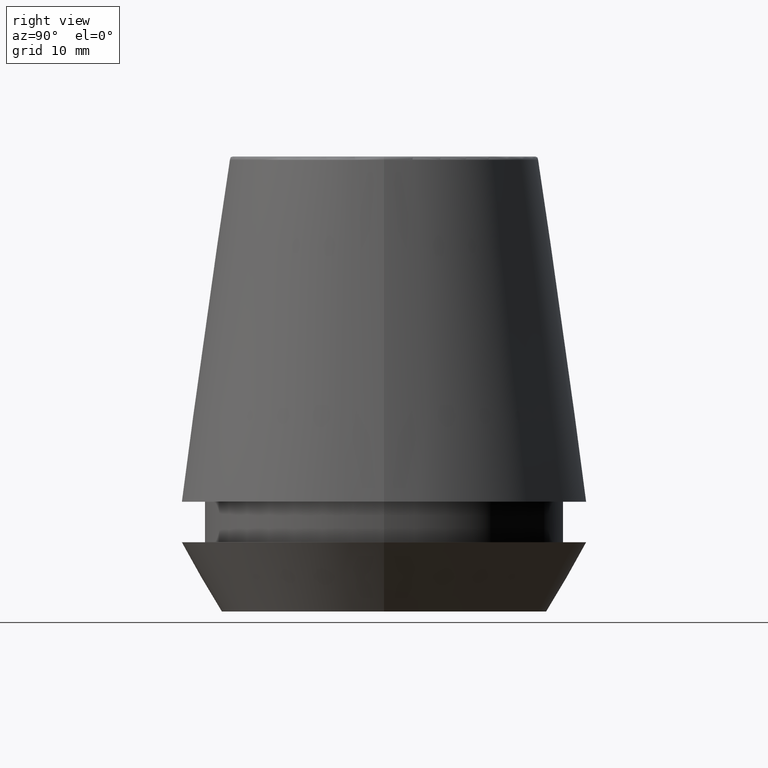
[diagram: clean part render]
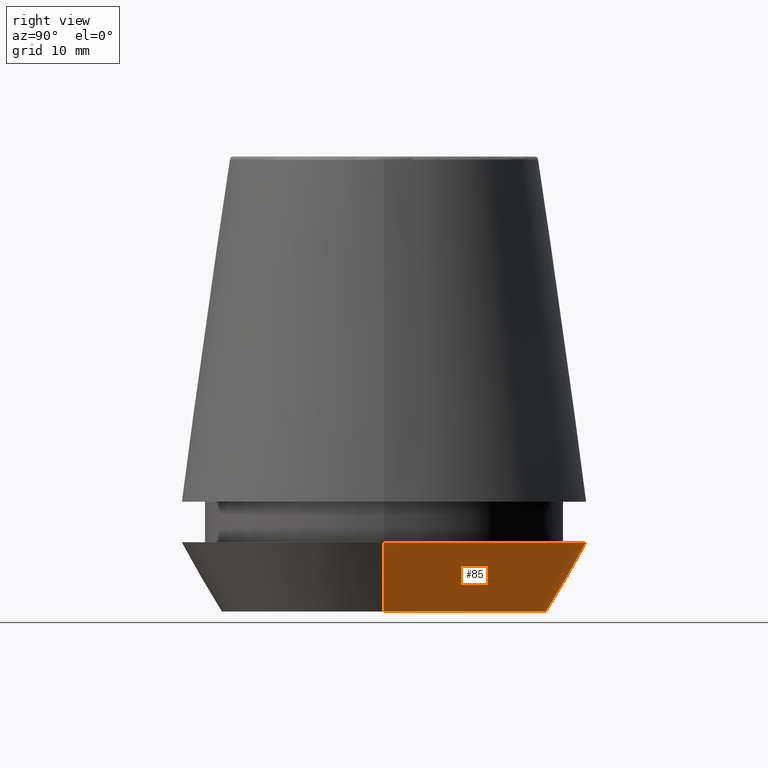
[diagram: same view with one face highlighted and labeled with its STEP entity id]
A machine part, right view. The second image highlights one B-rep face of the part: STEP entity #85.
In plain terms, the highlighted conical surface has half-angle 30 deg.
Its self-contained STEP definition (entity closure, byte-faithful):
#20 = CARTESIAN_POINT ( 'NONE',  ( 20.50000000000000000, 0.0000000000000000000, 7.000000000000006200 ) ) ;
#24 = EDGE_CURVE ( 'NONE', #293, #193, #84, .T. ) ;
#26 = VERTEX_POINT ( 'NONE', #110 ) ;
#35 = EDGE_CURVE ( 'NONE', #26, #193, #61, .T. ) ;
#40 = CARTESIAN_POINT ( 'NONE',  ( 16.45854811567268100, 0.0000000000000000000, 0.0000000000000000000 ) ) ;
#42 = DIRECTION ( 'NONE',  ( -0.0000000000000000000, -0.0000000000000000000, 1.000000000000000000 ) ) ;
#48 = AXIS2_PLACEMENT_3D ( 'NONE', #235, #42, #233 ) ;
#61 = LINE ( 'NONE', #372, #280 ) ;
#63 = DIRECTION ( 'NONE',  ( -0.4999999999999941700, 6.123233995736694500E-017, 0.8660254037844420400 ) ) ;
#72 = CONICAL_SURFACE ( 'NONE', #276, 16.45854811567268100, 0.5235987755982921500 ) ;
#73 = DIRECTION ( 'NONE',  ( -0.0000000000000000000, -0.0000000000000000000, 1.000000000000000000 ) ) ;
#84 = CIRCLE ( 'NONE', #48, 20.50000000000000000 ) ;
#85 = ADVANCED_FACE ( 'NONE', ( #326 ), #72, .T. ) ;
#110 = CARTESIAN_POINT ( 'NONE',  ( -16.45854811567268100, 2.263058382549599700E-015, 0.0000000000000000000 ) ) ;
#115 = CIRCLE ( 'NONE', #164, 16.45854811567268100 ) ;
#120 = CARTESIAN_POINT ( 'NONE',  ( 0.0000000000000000000, 0.0000000000000000000, 0.0000000000000000000 ) ) ;
#133 = DIRECTION ( 'NONE',  ( -0.0000000000000000000, -0.0000000000000000000, 1.000000000000000000 ) ) ;
#137 = EDGE_CURVE ( 'NONE', #204, #293, #156, .T. ) ;
#156 = LINE ( 'NONE', #182, #379 ) ;
#164 = AXIS2_PLACEMENT_3D ( 'NONE', #330, #133, #366 ) ;
#182 = CARTESIAN_POINT ( 'NONE',  ( 16.45854811567268100, 0.0000000000000000000, 0.0000000000000000000 ) ) ;
#193 = VERTEX_POINT ( 'NONE', #231 ) ;
#204 = VERTEX_POINT ( 'NONE', #40 ) ;
#231 = CARTESIAN_POINT ( 'NONE',  ( -20.50000000000000000, 2.510525938252074100E-015, 7.000000000000006200 ) ) ;
#233 = DIRECTION ( 'NONE',  ( 1.000000000000000000, 0.0000000000000000000, 0.0000000000000000000 ) ) ;
#235 = CARTESIAN_POINT ( 'NONE',  ( 0.0000000000000000000, 0.0000000000000000000, 7.000000000000006200 ) ) ;
#245 = ORIENTED_EDGE ( 'NONE', *, *, #24, .F. ) ;
#251 = DIRECTION ( 'NONE',  ( 1.000000000000000000, 0.0000000000000000000, 0.0000000000000000000 ) ) ;
#260 = ORIENTED_EDGE ( 'NONE', *, *, #137, .F. ) ;
#267 = ORIENTED_EDGE ( 'NONE', *, *, #35, .T. ) ;
#276 = AXIS2_PLACEMENT_3D ( 'NONE', #120, #73, #251 ) ;
#280 = VECTOR ( 'NONE', #63, 1000.000000000000000 ) ;
#293 = VERTEX_POINT ( 'NONE', #20 ) ;
#314 = ORIENTED_EDGE ( 'NONE', *, *, #385, .T. ) ;
#315 = EDGE_LOOP ( 'NONE', ( #314, #267, #245, #260 ) ) ;
#319 = DIRECTION ( 'NONE',  ( 0.4999999999999941700, 0.0000000000000000000, 0.8660254037844420400 ) ) ;
#326 = FACE_OUTER_BOUND ( 'NONE', #315, .T. ) ;
#330 = CARTESIAN_POINT ( 'NONE',  ( 0.0000000000000000000, 0.0000000000000000000, 0.0000000000000000000 ) ) ;
#366 = DIRECTION ( 'NONE',  ( 1.000000000000000000, 0.0000000000000000000, 0.0000000000000000000 ) ) ;
#372 = CARTESIAN_POINT ( 'NONE',  ( -16.45854811567268100, 2.015590826847124800E-015, 0.0000000000000000000 ) ) ;
#379 = VECTOR ( 'NONE', #319, 1000.000000000000000 ) ;
#385 = EDGE_CURVE ( 'NONE', #204, #26, #115, .T. ) ;